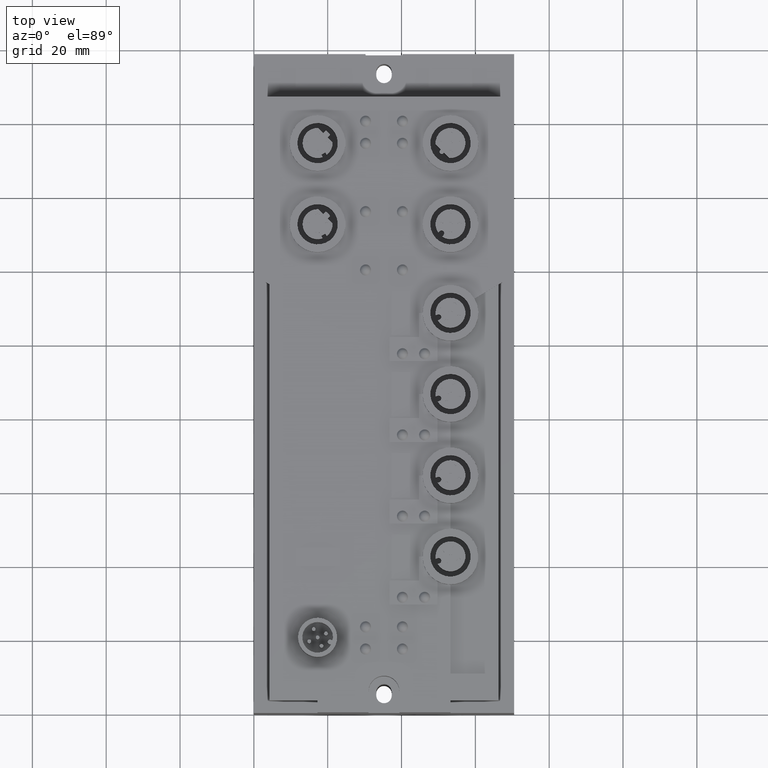
[diagram: clean part render]
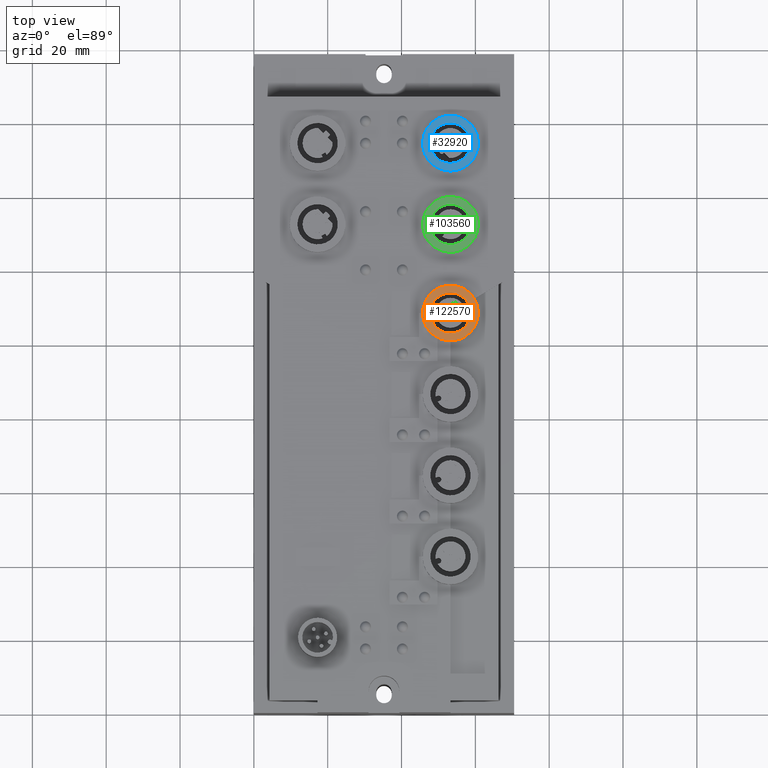
[diagram: same view with three faces highlighted in distinct colors, each labeled with its STEP entity id]
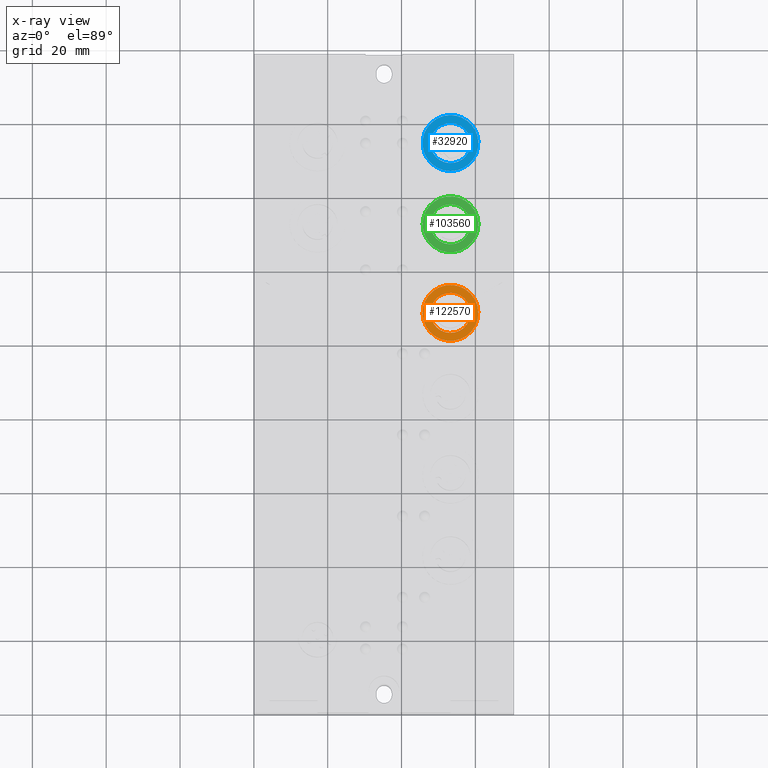
[diagram: x-ray of the same camera — body ghosted, the three highlighted faces saturated]
A machine part, top view with three faces highlighted in distinct colors.
The next image is the same camera in x-ray (body ghosted, the three faces saturated) — at least one of them is partly hidden behind the body in this view.
Their STEP definitions:

[orange] entity #122570 — the highlighted planar face has unit normal (0, 0, -1).
#34160=CARTESIAN_POINT('',(-28.0086561674742,-93.5685464072346,
2.9999999999256));
#34170=VERTEX_POINT('',#34160);
#34250=CARTESIAN_POINT('',(-20.9913438325261,-101.931453592765,
2.99999999992584));
#34260=VERTEX_POINT('',#34250);
#34290=CARTESIAN_POINT('',(-24.5000000000001,-97.7499999999996,
2.99999999992572));
#34300=DIRECTION('',(4.98694211509138E-14,1.33624711243949E-14,-1.));
#34310=DIRECTION('',(-0.642787609686539,0.766044443118978,
-2.18191992668667E-14));
#34320=AXIS2_PLACEMENT_3D('',#34290,#34300,#34310);
#34330=CIRCLE('',#34320,5.4585000000001);
#34340=EDGE_CURVE('',#34260,#34170,#34330,.T.);
#43750=CARTESIAN_POINT('',(-31.3426237921267,-94.5592321238576,
2.99999999992563));
#43760=VERTEX_POINT('',#43750);
#43790=CARTESIAN_POINT('',(-24.5,-97.7499999999999,2.99999999992572));
#43800=DIRECTION('',(-2.18191992668667E-14,-1.83084820574114E-14,1.));
#43810=DIRECTION('',(-0.90630778703665,0.4226182617407,
-1.20374113402516E-14));
#43820=AXIS2_PLACEMENT_3D('',#43790,#43800,#43810);
#43830=CIRCLE('',#43820,7.55);
#43840=CARTESIAN_POINT('',(-17.8835745585605,-101.386676281699,
2.9999999999258));
#43850=VERTEX_POINT('',#43840);
#43860=EDGE_CURVE('',#43760,#43850,#43830,.T.);
#43880=CARTESIAN_POINT('',(-17.6573762078733,-100.940767876142,
2.99999999992581));
#43890=VERTEX_POINT('',#43880);
#43900=EDGE_CURVE('',#43850,#43890,#43830,.T.);
#122410=CARTESIAN_POINT('',(-30.5641284267099,-94.9222504745892,
2.99999999992564));
#122420=DIRECTION('',(2.18191992668667E-14,1.83084820574114E-14,-1.));
#122430=DIRECTION('',(0.90630778703665,-0.4226182617407,
1.20374113402516E-14));
#122440=AXIS2_PLACEMENT_3D('',#122410,#122420,#122430);
#122450=PLANE('',#122440);
#122460=EDGE_CURVE('',#43890,#43760,#43830,.T.);
#122470=ORIENTED_EDGE('',*,*,#122460,.T.);
#122480=ORIENTED_EDGE('',*,*,#43900,.T.);
#122490=ORIENTED_EDGE('',*,*,#43860,.T.);
#122500=EDGE_LOOP('',(#122490,#122480,#122470));
#122510=FACE_OUTER_BOUND('',#122500,.T.);
#122520=EDGE_CURVE('',#34170,#34260,#34330,.T.);
#122530=ORIENTED_EDGE('',*,*,#122520,.T.);
#122540=ORIENTED_EDGE('',*,*,#34340,.T.);
#122550=EDGE_LOOP('',(#122540,#122530));
#122560=FACE_BOUND('',#122550,.T.);
#122570=ADVANCED_FACE('',(#122510,#122560),#122450,.F.);

[blue] entity #32920 — the highlighted planar face has unit normal (0, 0, -1).
#32530=CARTESIAN_POINT('',(-31.1910254037846,-51.7499999999995,
2.99999999992557));
#32540=DIRECTION('',(2.18191992668667E-14,1.83084820574114E-14,-1.));
#32550=DIRECTION('',(1.,0.,2.18191992668667E-14));
#32560=AXIS2_PLACEMENT_3D('',#32530,#32540,#32550);
#32570=PLANE('',#32560);
#32580=CARTESIAN_POINT('',(-24.5000000000001,-51.7499999999995,
2.99999999992572));
#32590=DIRECTION('',(0.,0.,-1.));
#32600=DIRECTION('',(0.,1.,0.));
#32610=AXIS2_PLACEMENT_3D('',#32580,#32590,#32600);
#32620=CIRCLE('',#32610,7.54999999999999);
#32630=CARTESIAN_POINT('',(-16.9665562913908,-51.2502741859621,
2.99999999992589));
#32640=VERTEX_POINT('',#32630);
#32650=CARTESIAN_POINT('',(-24.5000000000001,-59.2999999999995,
2.99999999992572));
#32660=VERTEX_POINT('',#32650);
#32670=EDGE_CURVE('',#32640,#32660,#32620,.T.);
#32680=ORIENTED_EDGE('',*,*,#32670,.F.);
#32690=CARTESIAN_POINT('',(-24.5000000000001,-44.1999999999995,
2.99999999992572));
#32700=VERTEX_POINT('',#32690);
#32710=EDGE_CURVE('',#32660,#32700,#32620,.T.);
#32720=ORIENTED_EDGE('',*,*,#32710,.F.);
#32730=EDGE_CURVE('',#32700,#32640,#32620,.T.);
#32740=ORIENTED_EDGE('',*,*,#32730,.F.);
#32750=EDGE_LOOP('',(#32740,#32720,#32680));
#32760=FACE_OUTER_BOUND('',#32750,.T.);
#32770=CARTESIAN_POINT('',(-24.5000000000001,-51.7499999999996,
2.99999999992572));
#32780=DIRECTION('',(2.18191992668666E-14,1.83084820574114E-14,-1.));
#32790=DIRECTION('',(-0.90630778703665,0.422618261740699,
-1.20374113402516E-14));
#32800=AXIS2_PLACEMENT_3D('',#32770,#32780,#32790);
#32810=CIRCLE('',#32800,5.4585000000001);
#32820=CARTESIAN_POINT('',(-29.4470810555397,-49.4431382182879,
2.99999999992565));
#32830=VERTEX_POINT('',#32820);
#32840=CARTESIAN_POINT('',(-19.5529189444605,-54.0568617817113,
2.99999999992579));
#32850=VERTEX_POINT('',#32840);
#32860=EDGE_CURVE('',#32830,#32850,#32810,.T.);
#32870=ORIENTED_EDGE('',*,*,#32860,.T.);
#32880=EDGE_CURVE('',#32850,#32830,#32810,.T.);
#32890=ORIENTED_EDGE('',*,*,#32880,.T.);
#32900=EDGE_LOOP('',(#32890,#32870));
#32910=FACE_BOUND('',#32900,.T.);
#32920=ADVANCED_FACE('',(#32760,#32910),#32570,.F.);

[green] entity #103560 — the highlighted planar face has unit normal (0, 0, -1).
#66110=CARTESIAN_POINT('',(-16.95,-73.7499999999999,2.99999999992588));
#66120=VERTEX_POINT('',#66110);
#66150=CARTESIAN_POINT('',(-24.5,-73.7499999999999,2.99999999992572));
#66160=DIRECTION('',(-2.18191992668667E-14,-1.83084820574114E-14,1.));
#66170=DIRECTION('',(-1.,0.,-2.18191992668667E-14));
#66180=AXIS2_PLACEMENT_3D('',#66150,#66160,#66170);
#66190=CIRCLE('',#66180,7.55);
#66200=CARTESIAN_POINT('',(-16.9665562913908,-73.2502741859621,
2.99999999992589));
#66210=VERTEX_POINT('',#66200);
#66220=EDGE_CURVE('',#66120,#66210,#66190,.T.);
#66240=CARTESIAN_POINT('',(-32.05,-73.7499999999999,2.99999999992555));
#66250=VERTEX_POINT('',#66240);
#66260=EDGE_CURVE('',#66210,#66250,#66190,.T.);
#103300=CARTESIAN_POINT('',(-31.1910254037846,-73.7499999999995,
2.99999999992557));
#103310=DIRECTION('',(2.18191992668667E-14,1.83084820574114E-14,-1.));
#103320=DIRECTION('',(1.,0.,2.18191992668667E-14));
#103330=AXIS2_PLACEMENT_3D('',#103300,#103310,#103320);
#103340=PLANE('',#103330);
#103350=EDGE_CURVE('',#66250,#66120,#66190,.T.);
#103360=ORIENTED_EDGE('',*,*,#103350,.T.);
#103370=ORIENTED_EDGE('',*,*,#66260,.T.);
#103380=ORIENTED_EDGE('',*,*,#66220,.T.);
#103390=EDGE_LOOP('',(#103380,#103370,#103360));
#103400=FACE_OUTER_BOUND('',#103390,.T.);
#103410=CARTESIAN_POINT('',(-24.5000000000002,-73.7499999999997,
2.99999999992572));
#103420=DIRECTION('',(4.93316083315463E-14,2.56804098481271E-14,-1.));
#103430=DIRECTION('',(-0.90630778703665,0.422618261740699,
-3.38566106071183E-14));
#103440=AXIS2_PLACEMENT_3D('',#103410,#103420,#103430);
#103450=CIRCLE('',#103440,5.4585000000001);
#103460=CARTESIAN_POINT('',(-29.4470810555399,-71.443138218288,
2.99999999992553));
#103470=VERTEX_POINT('',#103460);
#103480=CARTESIAN_POINT('',(-19.5529189444606,-76.0568617817113,
2.9999999999259));
#103490=VERTEX_POINT('',#103480);
#103500=EDGE_CURVE('',#103470,#103490,#103450,.T.);
#103510=ORIENTED_EDGE('',*,*,#103500,.T.);
#103520=EDGE_CURVE('',#103490,#103470,#103450,.T.);
#103530=ORIENTED_EDGE('',*,*,#103520,.T.);
#103540=EDGE_LOOP('',(#103530,#103510));
#103550=FACE_BOUND('',#103540,.T.);
#103560=ADVANCED_FACE('',(#103400,#103550),#103340,.F.);